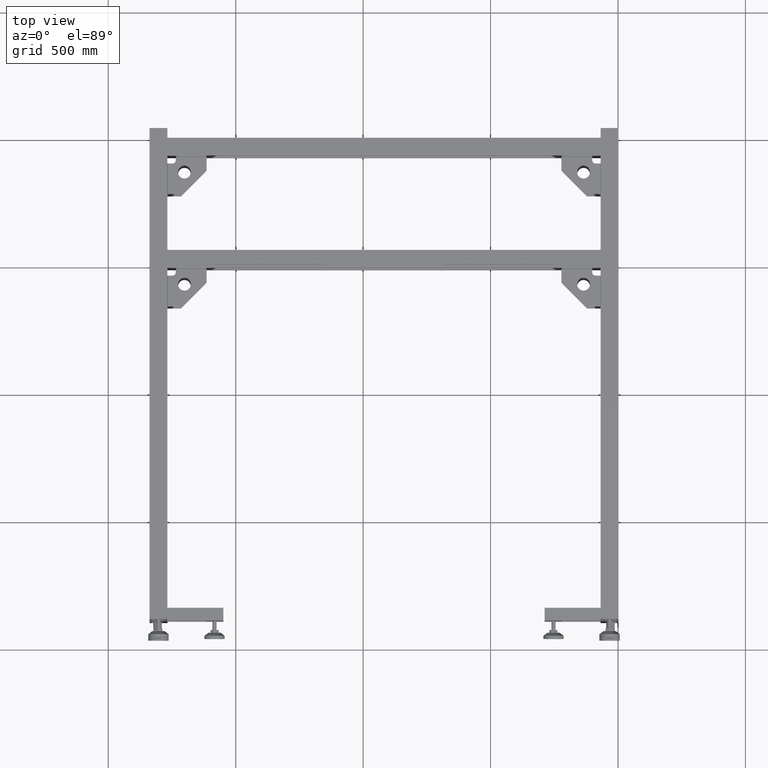
[diagram: clean part render]
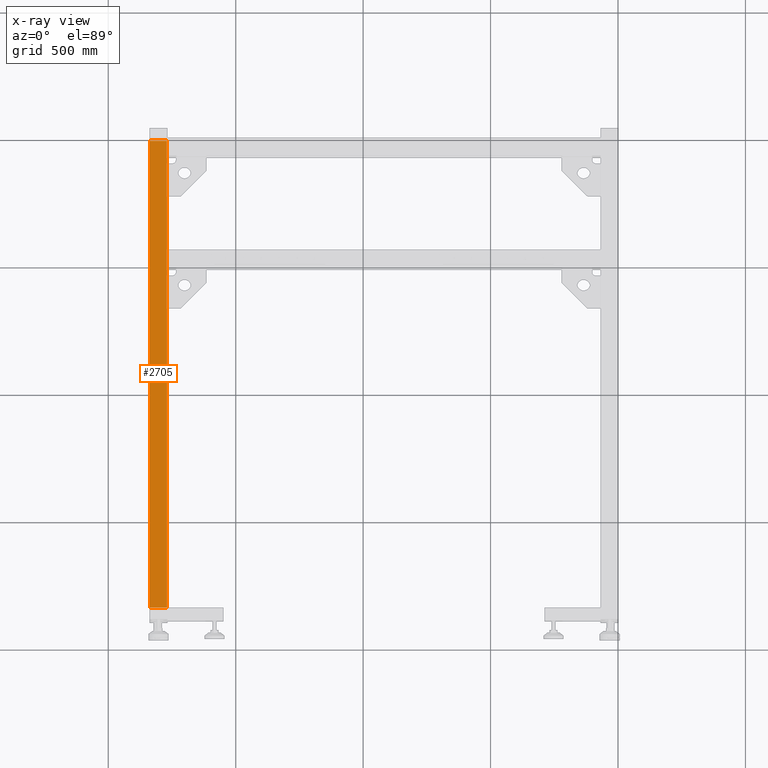
[diagram: x-ray — body ghosted, one internal face saturated and labeled with its STEP entity id]
A machine part, top view, then the same camera in x-ray: the body is ghosted and one INTERNAL B-rep face — a face not visible from any outside direction — is saturated and labeled: STEP entity #2705.
In plain terms, the highlighted planar face has unit normal (-0, 0, 1).
Its self-contained STEP definition (entity closure, byte-faithful):
#95 = VERTEX_POINT ( 'NONE', #71504 ) ;
#642 = EDGE_CURVE ( 'NONE', #63566, #95, #72579, .T. ) ;
#1635 = CARTESIAN_POINT ( 'NONE',  ( -1270.172487437185055, 986.4410804020109254, 201.9999999999999716 ) ) ;
#2705 = ADVANCED_FACE ( 'NONE', ( #41973 ), #16857, .T. ) ;
#6140 = VECTOR ( 'NONE', #20795, 1000.000000000000000 ) ;
#9710 = LINE ( 'NONE', #52410, #15545 ) ;
#10861 = DIRECTION ( 'NONE',  ( -0.000000000000000000, 0.000000000000000000, 1.000000000000000000 ) ) ;
#14011 = CARTESIAN_POINT ( 'NONE',  ( -1336.172487437185055, 986.4410804020136538, 201.9999999999999716 ) ) ;
#14645 = ORIENTED_EDGE ( 'NONE', *, *, #31560, .T. ) ;
#15000 = ORIENTED_EDGE ( 'NONE', *, *, #16634, .T. ) ;
#15545 = VECTOR ( 'NONE', #76738, 1000.000000000000000 ) ;
#16634 = EDGE_CURVE ( 'NONE', #77547, #47280, #69467, .T. ) ;
#16857 = PLANE ( 'NONE',  #53164 ) ;
#17928 = CARTESIAN_POINT ( 'NONE',  ( -1270.172487437185055, 986.4410804020136538, 201.9999999999999716 ) ) ;
#20795 = DIRECTION ( 'NONE',  ( -1.000000000000000078E-15, -1.000000000000000000, -0.000000000000000000 ) ) ;
#22121 = DIRECTION ( 'NONE',  ( -1.000000000000000000, 1.682156097916908074E-15, -0.000000000000000000 ) ) ;
#24022 = DIRECTION ( 'NONE',  ( 1.000000000000000000, 0.000000000000000000, 0.000000000000000000 ) ) ;
#24070 = EDGE_CURVE ( 'NONE', #47280, #95, #9710, .T. ) ;
#28496 = LINE ( 'NONE', #35658, #66786 ) ;
#30290 = DIRECTION ( 'NONE',  ( -1.000000000000000078E-15, -1.000000000000000000, -0.000000000000000000 ) ) ;
#31560 = EDGE_CURVE ( 'NONE', #63566, #77547, #28496, .T. ) ;
#35658 = CARTESIAN_POINT ( 'NONE',  ( -1336.172487437185055, 986.4410804020136538, 201.9999999999999716 ) ) ;
#41973 = FACE_OUTER_BOUND ( 'NONE', #49803, .T. ) ;
#43468 = CARTESIAN_POINT ( 'NONE',  ( -1336.172487437185055, -844.5589195979888473, 201.9999999999999716 ) ) ;
#47280 = VERTEX_POINT ( 'NONE', #43468 ) ;
#49803 = EDGE_LOOP ( 'NONE', ( #15000, #64169, #55678, #14645 ) ) ;
#52410 = CARTESIAN_POINT ( 'NONE',  ( -1336.172487437185055, -844.5589195979888473, 201.9999999999999716 ) ) ;
#53164 = AXIS2_PLACEMENT_3D ( 'NONE', #78651, #10861, #24022 ) ;
#55678 = ORIENTED_EDGE ( 'NONE', *, *, #642, .F. ) ;
#63566 = VERTEX_POINT ( 'NONE', #1635 ) ;
#64169 = ORIENTED_EDGE ( 'NONE', *, *, #24070, .T. ) ;
#66786 = VECTOR ( 'NONE', #22121, 1000.000000000000000 ) ;
#67190 = CARTESIAN_POINT ( 'NONE',  ( -1336.172487437185055, 986.4410804020136538, 201.9999999999999716 ) ) ;
#69467 = LINE ( 'NONE', #14011, #6140 ) ;
#71504 = CARTESIAN_POINT ( 'NONE',  ( -1270.172487437185055, -844.5589195979888473, 201.9999999999999716 ) ) ;
#72579 = LINE ( 'NONE', #17928, #78386 ) ;
#76738 = DIRECTION ( 'NONE',  ( 1.000000000000000000, 0.000000000000000000, 0.000000000000000000 ) ) ;
#77547 = VERTEX_POINT ( 'NONE', #67190 ) ;
#78386 = VECTOR ( 'NONE', #30290, 1000.000000000000000 ) ;
#78651 = CARTESIAN_POINT ( 'NONE',  ( -1336.172487437185055, 986.4410804020136538, 201.9999999999999716 ) ) ;